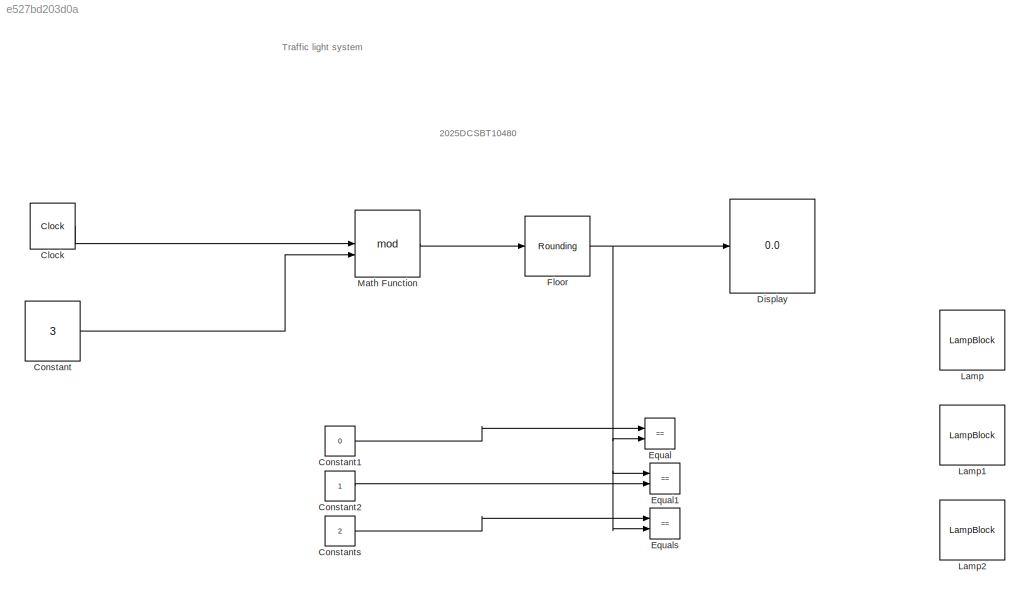
MODEL slx_e527bd203d0a
KIND model
CONFIG AbsTol = auto
CONFIG EnableMultiTasking = off
CONFIG FixedStep = auto
CONFIG MaxStep = auto
CONFIG MinStep = auto
CONFIG RelTol = 1e-3
CONFIG SampleTimeConstraint = Unconstrained
CONFIG SolverName = VariableStepAuto
CONFIG StartTime = 0.0
CONFIG StopTime = 10.0
BLOCK [Display]  Display
  Decimation = 1
BLOCK [Clock] Clock
BLOCK [Constant] Constant
  Value = 3
BLOCK [Constant] Constant1
  Value = 0
BLOCK [Constant] Constant2
BLOCK [Constant] Constants
  Value = 2
BLOCK [RelationalOperator] Equal
  InputSameDT = off
  Operator = ==
  OutDataTypeStr = boolean
  RndMeth = Simplest
BLOCK [RelationalOperator] Equal1
  InputSameDT = off
  Operator = ==
  OutDataTypeStr = boolean
  RndMeth = Simplest
BLOCK [RelationalOperator] Equals
  InputSameDT = off
  Operator = ==
  OutDataTypeStr = boolean
  RndMeth = Simplest
BLOCK [Rounding] Floor
BLOCK [LampBlock] Lamp
  DefaultColor = [192.0, 192.0, 192.0]
  LabelPosition = Hide
BLOCK [LampBlock] Lamp1
  DefaultColor = [192.0, 192.0, 192.0]
  LabelPosition = Hide
BLOCK [LampBlock] Lamp2
  DefaultColor = [192.0, 192.0, 192.0]
  LabelPosition = Hide
BLOCK [Math] Math Function
  Operator = mod
ANNOTATION (root): 2025DCSBT10480
ANNOTATION (root): Traffic light system
LINE Clock:1 -> Math Function:1
LINE Constant1:1 -> Equal:1
LINE Constant2:1 -> Equal1:2
LINE Constant:1 -> Math Function:2
LINE Constants:1 -> Equals:1
NET Floor:1 ->  Display:1, Equal1:1, Equal:2, Equals:2
LINE Math Function:1 -> Floor:1
note: NET lines group one-source signal fan-out (src -> all destinations, sorted); 1:1 wires keep LINE
